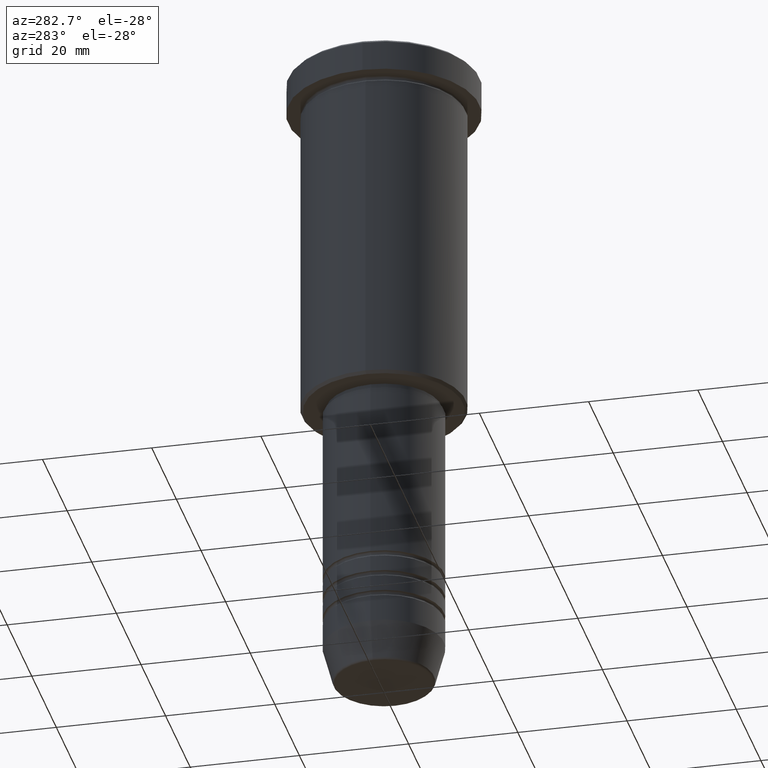
[diagram: clean part render]
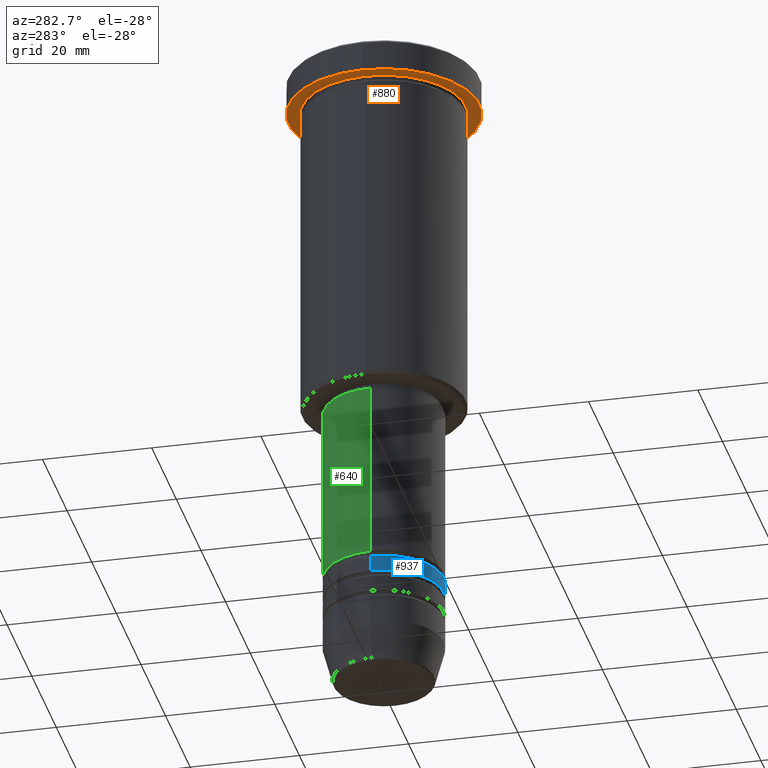
[diagram: same view with three faces highlighted in distinct colors, each labeled with its STEP entity id]
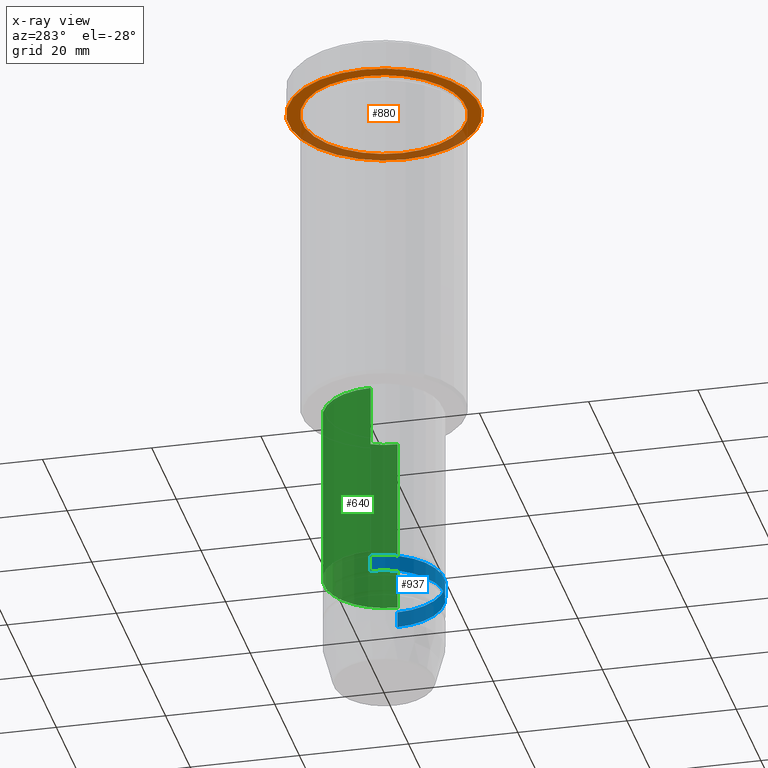
[diagram: x-ray of the same camera — body ghosted, the three highlighted faces saturated]
A machine part, auxiliary view with three faces highlighted in distinct colors.
The next image is the same camera in x-ray (body ghosted, the three faces saturated) — at least one of them is partly hidden behind the body in this view.
Their STEP definitions:

[orange] entity #880 — the highlighted planar face has unit normal (0, 0, -1).
#11 = CIRCLE ( 'NONE', #1017, 15.00000000000000000 ) ;
#22 = CARTESIAN_POINT ( 'NONE',  ( 15.00000000000000000, 1.836970198721029589E-15, -5.999999999999994671 ) ) ;
#75 = VERTEX_POINT ( 'NONE', #662 ) ;
#81 = DIRECTION ( 'NONE',  ( -0.000000000000000000, -0.000000000000000000, 1.000000000000000000 ) ) ;
#95 = VERTEX_POINT ( 'NONE', #553 ) ;
#121 = CIRCLE ( 'NONE', #203, 17.50000000000000000 ) ;
#123 = VERTEX_POINT ( 'NONE', #491 ) ;
#165 = PLANE ( 'NONE',  #274 ) ;
#203 = AXIS2_PLACEMENT_3D ( 'NONE', #269, #554, #736 ) ;
#233 = EDGE_LOOP ( 'NONE', ( #762, #238 ) ) ;
#238 = ORIENTED_EDGE ( 'NONE', *, *, #709, .F. ) ;
#255 = FACE_OUTER_BOUND ( 'NONE', #233, .T. ) ;
#269 = CARTESIAN_POINT ( 'NONE',  ( 0.000000000000000000, 0.000000000000000000, -5.999999999999995559 ) ) ;
#274 = AXIS2_PLACEMENT_3D ( 'NONE', #331, #700, #1071 ) ;
#331 = CARTESIAN_POINT ( 'NONE',  ( 0.000000000000000000, 17.50000000000000000, -5.999999999999995559 ) ) ;
#340 = CARTESIAN_POINT ( 'NONE',  ( 0.000000000000000000, 0.000000000000000000, -5.999999999999995559 ) ) ;
#433 = EDGE_LOOP ( 'NONE', ( #1182, #1136 ) ) ;
#491 = CARTESIAN_POINT ( 'NONE',  ( -15.00000000000000000, 0.000000000000000000, -5.999999999999994671 ) ) ;
#553 = CARTESIAN_POINT ( 'NONE',  ( -17.50000000000000000, 2.143131898507868248E-15, -5.999999999999995559 ) ) ;
#554 = DIRECTION ( 'NONE',  ( -0.000000000000000000, -0.000000000000000000, 1.000000000000000000 ) ) ;
#614 = AXIS2_PLACEMENT_3D ( 'NONE', #1046, #688, #1026 ) ;
#628 = DIRECTION ( 'NONE',  ( -0.000000000000000000, -0.000000000000000000, 1.000000000000000000 ) ) ;
#662 = CARTESIAN_POINT ( 'NONE',  ( 17.50000000000000000, 0.000000000000000000, -5.999999999999995559 ) ) ;
#676 = VERTEX_POINT ( 'NONE', #22 ) ;
#688 = DIRECTION ( 'NONE',  ( -0.000000000000000000, -0.000000000000000000, 1.000000000000000000 ) ) ;
#700 = DIRECTION ( 'NONE',  ( 0.000000000000000000, 0.000000000000000000, -1.000000000000000000 ) ) ;
#709 = EDGE_CURVE ( 'NONE', #95, #75, #121, .T. ) ;
#723 = AXIS2_PLACEMENT_3D ( 'NONE', #808, #81, #1159 ) ;
#736 = DIRECTION ( 'NONE',  ( 1.000000000000000000, 0.000000000000000000, 0.000000000000000000 ) ) ;
#762 = ORIENTED_EDGE ( 'NONE', *, *, #780, .F. ) ;
#780 = EDGE_CURVE ( 'NONE', #75, #95, #811, .T. ) ;
#808 = CARTESIAN_POINT ( 'NONE',  ( 0.000000000000000000, 0.000000000000000000, -5.999999999999995559 ) ) ;
#811 = CIRCLE ( 'NONE', #614, 17.50000000000000000 ) ;
#880 = ADVANCED_FACE ( 'NONE', ( #1151, #255 ), #165, .T. ) ;
#907 = CIRCLE ( 'NONE', #723, 15.00000000000000000 ) ;
#920 = EDGE_CURVE ( 'NONE', #676, #123, #11, .T. ) ;
#1017 = AXIS2_PLACEMENT_3D ( 'NONE', #340, #628, #1088 ) ;
#1026 = DIRECTION ( 'NONE',  ( 1.000000000000000000, 0.000000000000000000, 0.000000000000000000 ) ) ;
#1046 = CARTESIAN_POINT ( 'NONE',  ( 0.000000000000000000, 0.000000000000000000, -5.999999999999995559 ) ) ;
#1071 = DIRECTION ( 'NONE',  ( -1.000000000000000000, 0.000000000000000000, -0.000000000000000000 ) ) ;
#1088 = DIRECTION ( 'NONE',  ( -1.000000000000000000, 0.000000000000000000, 0.000000000000000000 ) ) ;
#1103 = EDGE_CURVE ( 'NONE', #123, #676, #907, .T. ) ;
#1136 = ORIENTED_EDGE ( 'NONE', *, *, #920, .T. ) ;
#1151 = FACE_BOUND ( 'NONE', #433, .T. ) ;
#1159 = DIRECTION ( 'NONE',  ( -1.000000000000000000, 0.000000000000000000, 0.000000000000000000 ) ) ;
#1182 = ORIENTED_EDGE ( 'NONE', *, *, #1103, .T. ) ;

[blue] entity #937 — the highlighted cylindrical surface (partial cylindrical patch) has radius 11 mm, axis along (-0, -0, 1).
#51 = ORIENTED_EDGE ( 'NONE', *, *, #929, .T. ) ;
#71 = CIRCLE ( 'NONE', #1115, 11.00000000000000000 ) ;
#101 = DIRECTION ( 'NONE',  ( -0.000000000000000000, -0.000000000000000000, 1.000000000000000000 ) ) ;
#111 = VERTEX_POINT ( 'NONE', #193 ) ;
#153 = CARTESIAN_POINT ( 'NONE',  ( -11.00000000000000000, 1.347111479062088602E-15, -100.9999999999999005 ) ) ;
#158 = DIRECTION ( 'NONE',  ( 1.000000000000000000, 0.000000000000000000, 0.000000000000000000 ) ) ;
#176 = DIRECTION ( 'NONE',  ( -0.000000000000000000, -0.000000000000000000, 1.000000000000000000 ) ) ;
#182 = DIRECTION ( 'NONE',  ( 1.000000000000000000, 0.000000000000000000, 0.000000000000000000 ) ) ;
#193 = CARTESIAN_POINT ( 'NONE',  ( 11.00000000000000000, 0.000000000000000000, -100.9999999999999005 ) ) ;
#207 = CARTESIAN_POINT ( 'NONE',  ( 0.000000000000000000, 0.000000000000000000, 0.000000000000000000 ) ) ;
#282 = DIRECTION ( 'NONE',  ( 1.000000000000000000, 0.000000000000000000, 0.000000000000000000 ) ) ;
#347 = ORIENTED_EDGE ( 'NONE', *, *, #1142, .T. ) ;
#370 = CYLINDRICAL_SURFACE ( 'NONE', #1078, 11.00000000000000178 ) ;
#404 = CARTESIAN_POINT ( 'NONE',  ( -11.00000000000000178, 1.347111479062088602E-15, 0.000000000000000000 ) ) ;
#410 = EDGE_LOOP ( 'NONE', ( #1080, #347, #51, #1067 ) ) ;
#449 = VERTEX_POINT ( 'NONE', #838 ) ;
#465 = CARTESIAN_POINT ( 'NONE',  ( 0.000000000000000000, 0.000000000000000000, -100.9999999999999005 ) ) ;
#548 = FACE_OUTER_BOUND ( 'NONE', #410, .T. ) ;
#584 = CARTESIAN_POINT ( 'NONE',  ( -11.00000000000000355, 1.347111479062088996E-15, -103.9999999999999147 ) ) ;
#618 = EDGE_CURVE ( 'NONE', #1057, #111, #71, .T. ) ;
#703 = VECTOR ( 'NONE', #1149, 1000.000000000000000 ) ;
#729 = VERTEX_POINT ( 'NONE', #584 ) ;
#746 = EDGE_CURVE ( 'NONE', #729, #1057, #764, .T. ) ;
#764 = LINE ( 'NONE', #404, #703 ) ;
#838 = CARTESIAN_POINT ( 'NONE',  ( 11.00000000000000355, 0.000000000000000000, -103.9999999999999147 ) ) ;
#870 = AXIS2_PLACEMENT_3D ( 'NONE', #989, #176, #158 ) ;
#929 = EDGE_CURVE ( 'NONE', #449, #111, #1004, .T. ) ;
#937 = ADVANCED_FACE ( 'NONE', ( #548 ), #370, .T. ) ;
#989 = CARTESIAN_POINT ( 'NONE',  ( 0.000000000000000000, 0.000000000000000000, -103.9999999999999147 ) ) ;
#994 = CARTESIAN_POINT ( 'NONE',  ( 11.00000000000000178, 0.000000000000000000, 0.000000000000000000 ) ) ;
#1002 = VECTOR ( 'NONE', #101, 1000.000000000000000 ) ;
#1004 = LINE ( 'NONE', #994, #1002 ) ;
#1020 = DIRECTION ( 'NONE',  ( -0.000000000000000000, -0.000000000000000000, 1.000000000000000000 ) ) ;
#1040 = CIRCLE ( 'NONE', #870, 11.00000000000000355 ) ;
#1057 = VERTEX_POINT ( 'NONE', #153 ) ;
#1067 = ORIENTED_EDGE ( 'NONE', *, *, #618, .F. ) ;
#1078 = AXIS2_PLACEMENT_3D ( 'NONE', #207, #1020, #182 ) ;
#1080 = ORIENTED_EDGE ( 'NONE', *, *, #746, .F. ) ;
#1091 = DIRECTION ( 'NONE',  ( -0.000000000000000000, -0.000000000000000000, 1.000000000000000000 ) ) ;
#1115 = AXIS2_PLACEMENT_3D ( 'NONE', #465, #1091, #282 ) ;
#1142 = EDGE_CURVE ( 'NONE', #729, #449, #1040, .T. ) ;
#1149 = DIRECTION ( 'NONE',  ( -0.000000000000000000, -0.000000000000000000, 1.000000000000000000 ) ) ;

[green] entity #640 — the highlighted cylindrical surface (partial cylindrical patch) has radius 11 mm, axis along (-0, -0, 1).
#16 = CARTESIAN_POINT ( 'NONE',  ( 11.00000000000000000, 0.000000000000000000, -99.99999999999990052 ) ) ;
#83 = CARTESIAN_POINT ( 'NONE',  ( 11.00000000000000000, 0.000000000000000000, -67.00000000000000000 ) ) ;
#86 = VECTOR ( 'NONE', #748, 1000.000000000000000 ) ;
#99 = ORIENTED_EDGE ( 'NONE', *, *, #406, .T. ) ;
#200 = DIRECTION ( 'NONE',  ( -0.000000000000000000, -0.000000000000000000, 1.000000000000000000 ) ) ;
#211 = DIRECTION ( 'NONE',  ( -0.000000000000000000, -0.000000000000000000, 1.000000000000000000 ) ) ;
#212 = LINE ( 'NONE', #819, #86 ) ;
#252 = VERTEX_POINT ( 'NONE', #328 ) ;
#258 = VECTOR ( 'NONE', #211, 1000.000000000000000 ) ;
#328 = CARTESIAN_POINT ( 'NONE',  ( -11.00000000000000000, 1.347111479062088405E-15, -99.99999999999990052 ) ) ;
#349 = CARTESIAN_POINT ( 'NONE',  ( -11.00000000000000000, 1.347111479062088405E-15, -67.00000000000000000 ) ) ;
#406 = EDGE_CURVE ( 'NONE', #252, #879, #212, .T. ) ;
#437 = CARTESIAN_POINT ( 'NONE',  ( 0.000000000000000000, 0.000000000000000000, -67.00000000000000000 ) ) ;
#444 = VERTEX_POINT ( 'NONE', #83 ) ;
#458 = DIRECTION ( 'NONE',  ( 1.000000000000000000, 0.000000000000000000, 0.000000000000000000 ) ) ;
#466 = CARTESIAN_POINT ( 'NONE',  ( 0.000000000000000000, 0.000000000000000000, -99.99999999999990052 ) ) ;
#474 = DIRECTION ( 'NONE',  ( -0.000000000000000000, -0.000000000000000000, 1.000000000000000000 ) ) ;
#529 = DIRECTION ( 'NONE',  ( 1.000000000000000000, 0.000000000000000000, 0.000000000000000000 ) ) ;
#556 = DIRECTION ( 'NONE',  ( 1.000000000000000000, 0.000000000000000000, 0.000000000000000000 ) ) ;
#574 = CIRCLE ( 'NONE', #1138, 11.00000000000000000 ) ;
#588 = ORIENTED_EDGE ( 'NONE', *, *, #1034, .F. ) ;
#640 = ADVANCED_FACE ( 'NONE', ( #993 ), #919, .T. ) ;
#664 = CARTESIAN_POINT ( 'NONE',  ( 11.00000000000000000, 0.000000000000000000, 0.000000000000000000 ) ) ;
#685 = EDGE_LOOP ( 'NONE', ( #980, #99, #693, #588 ) ) ;
#693 = ORIENTED_EDGE ( 'NONE', *, *, #900, .F. ) ;
#748 = DIRECTION ( 'NONE',  ( -0.000000000000000000, -0.000000000000000000, 1.000000000000000000 ) ) ;
#800 = DIRECTION ( 'NONE',  ( -0.000000000000000000, -0.000000000000000000, 1.000000000000000000 ) ) ;
#819 = CARTESIAN_POINT ( 'NONE',  ( -11.00000000000000000, 1.347111479062088405E-15, 0.000000000000000000 ) ) ;
#830 = AXIS2_PLACEMENT_3D ( 'NONE', #437, #800, #529 ) ;
#879 = VERTEX_POINT ( 'NONE', #349 ) ;
#885 = LINE ( 'NONE', #664, #258 ) ;
#900 = EDGE_CURVE ( 'NONE', #444, #879, #983, .T. ) ;
#919 = CYLINDRICAL_SURFACE ( 'NONE', #997, 11.00000000000000000 ) ;
#960 = VERTEX_POINT ( 'NONE', #16 ) ;
#980 = ORIENTED_EDGE ( 'NONE', *, *, #995, .T. ) ;
#983 = CIRCLE ( 'NONE', #830, 11.00000000000000000 ) ;
#993 = FACE_OUTER_BOUND ( 'NONE', #685, .T. ) ;
#995 = EDGE_CURVE ( 'NONE', #960, #252, #574, .T. ) ;
#997 = AXIS2_PLACEMENT_3D ( 'NONE', #1016, #474, #458 ) ;
#1016 = CARTESIAN_POINT ( 'NONE',  ( 0.000000000000000000, 0.000000000000000000, 0.000000000000000000 ) ) ;
#1034 = EDGE_CURVE ( 'NONE', #960, #444, #885, .T. ) ;
#1138 = AXIS2_PLACEMENT_3D ( 'NONE', #466, #200, #556 ) ;